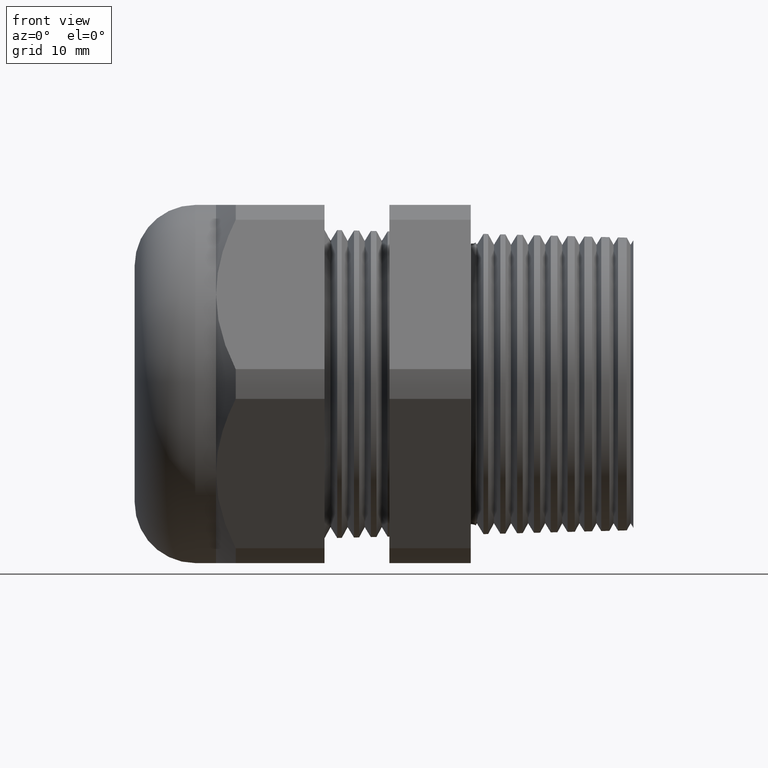
[diagram: clean part render]
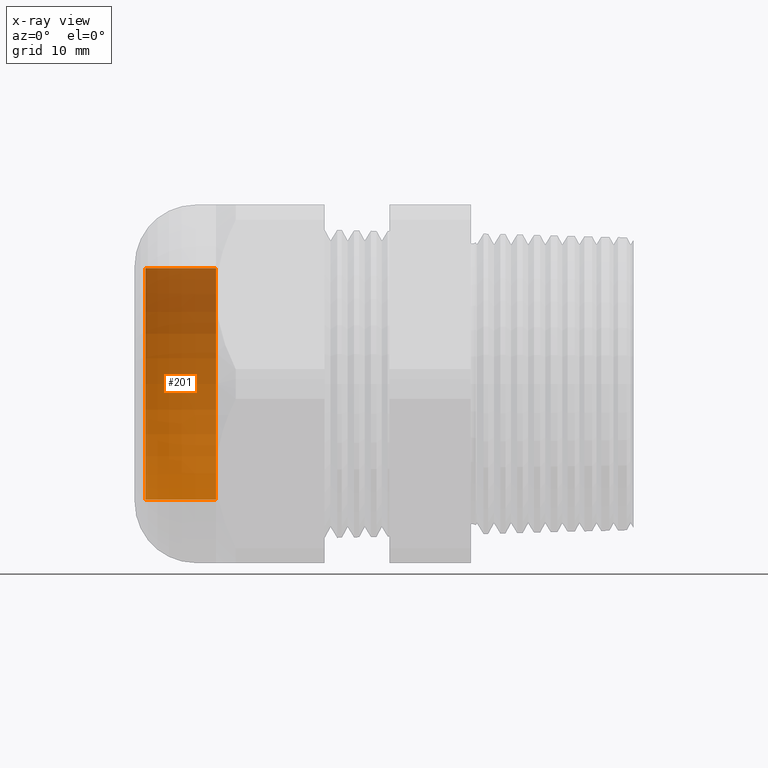
[diagram: x-ray — body ghosted, one internal face saturated and labeled with its STEP entity id]
A machine part, front view, then the same camera in x-ray: the body is ghosted and one INTERNAL B-rep face — a face not visible from any outside direction — is saturated and labeled: STEP entity #201.
In plain terms, the highlighted cylindrical surface (partial cylindrical patch) has radius 10.668 mm, axis along (1, 0, 0).
Its self-contained STEP definition (entity closure, byte-faithful):
#152 = VERTEX_POINT ( 'NONE', #1217 ) ;
#158 = VERTEX_POINT ( 'NONE', #1270 ) ;
#162 = EDGE_CURVE ( 'NONE', #158, #152, #1264, .T. ) ;
#167 = ORIENTED_EDGE ( 'NONE', *, *, #162, .T. ) ;
#175 = ORIENTED_EDGE ( 'NONE', *, *, #195, .T. ) ;
#189 = EDGE_LOOP ( 'NONE', ( #167, #175, #194, #191 ) ) ;
#191 = ORIENTED_EDGE ( 'NONE', *, *, #193, .F. ) ;
#193 = EDGE_CURVE ( 'NONE', #158, #197, #1277, .T. ) ;
#194 = ORIENTED_EDGE ( 'NONE', *, *, #196, .F. ) ;
#195 = EDGE_CURVE ( 'NONE', #152, #198, #1273, .T. ) ;
#196 = EDGE_CURVE ( 'NONE', #197, #198, #1334, .T. ) ;
#197 = VERTEX_POINT ( 'NONE', #1329 ) ;
#198 = VERTEX_POINT ( 'NONE', #1328 ) ;
#201 = ADVANCED_FACE ( 'NONE', ( #1325 ), #1320, .T. ) ;
#1217 = CARTESIAN_POINT ( 'NONE',  ( -1.491000000000000100, 5.143516556418884400E-017, 0.4200000000000000400 ) ) ;
#1260 = DIRECTION ( 'NONE',  ( 0.0000000000000000000, 0.0000000000000000000, -1.000000000000000000 ) ) ;
#1261 = DIRECTION ( 'NONE',  ( 1.000000000000000000, 0.0000000000000000000, 0.0000000000000000000 ) ) ;
#1262 = CARTESIAN_POINT ( 'NONE',  ( -1.491000000000000100, 0.0000000000000000000, 0.0000000000000000000 ) ) ;
#1263 = AXIS2_PLACEMENT_3D ( 'NONE', #1262, #1261, #1260 ) ;
#1264 = CIRCLE ( 'NONE', #1263, 0.4200000000000000400 ) ;
#1270 = CARTESIAN_POINT ( 'NONE',  ( -1.491000000000000100, 0.0000000000000000000, -0.4200000000000000400 ) ) ;
#1271 = VECTOR ( 'NONE', #1335, 39.37007874015748100 ) ;
#1272 = CARTESIAN_POINT ( 'NONE',  ( 0.0000000000000000000, 5.143516556418884400E-017, 0.4200000000000000400 ) ) ;
#1273 = LINE ( 'NONE', #1272, #1271 ) ;
#1274 = DIRECTION ( 'NONE',  ( 1.000000000000000000, 0.0000000000000000000, 0.0000000000000000000 ) ) ;
#1275 = VECTOR ( 'NONE', #1274, 39.37007874015748100 ) ;
#1276 = CARTESIAN_POINT ( 'NONE',  ( 0.0000000000000000000, 0.0000000000000000000, -0.4200000000000000400 ) ) ;
#1277 = LINE ( 'NONE', #1276, #1275 ) ;
#1315 = DIRECTION ( 'NONE',  ( 0.0000000000000000000, 0.0000000000000000000, -1.000000000000000000 ) ) ;
#1316 = DIRECTION ( 'NONE',  ( 1.000000000000000000, 0.0000000000000000000, 0.0000000000000000000 ) ) ;
#1317 = CARTESIAN_POINT ( 'NONE',  ( 0.0000000000000000000, 0.0000000000000000000, 0.0000000000000000000 ) ) ;
#1318 = AXIS2_PLACEMENT_3D ( 'NONE', #1317, #1316, #1315 ) ;
#1320 = CYLINDRICAL_SURFACE ( 'NONE', #1318, 0.4200000000000000400 ) ;
#1325 = FACE_OUTER_BOUND ( 'NONE', #189, .T. ) ;
#1328 = CARTESIAN_POINT ( 'NONE',  ( -1.234724409448819000, 5.143516556418884400E-017, 0.4200000000000000400 ) ) ;
#1329 = CARTESIAN_POINT ( 'NONE',  ( -1.234724409448819000, 0.0000000000000000000, -0.4200000000000000400 ) ) ;
#1330 = DIRECTION ( 'NONE',  ( 0.0000000000000000000, 0.0000000000000000000, -1.000000000000000000 ) ) ;
#1331 = DIRECTION ( 'NONE',  ( 1.000000000000000000, 0.0000000000000000000, 0.0000000000000000000 ) ) ;
#1332 = CARTESIAN_POINT ( 'NONE',  ( -1.234724409448819000, 0.0000000000000000000, 0.0000000000000000000 ) ) ;
#1333 = AXIS2_PLACEMENT_3D ( 'NONE', #1332, #1331, #1330 ) ;
#1334 = CIRCLE ( 'NONE', #1333, 0.4200000000000000400 ) ;
#1335 = DIRECTION ( 'NONE',  ( 1.000000000000000000, 0.0000000000000000000, 0.0000000000000000000 ) ) ;